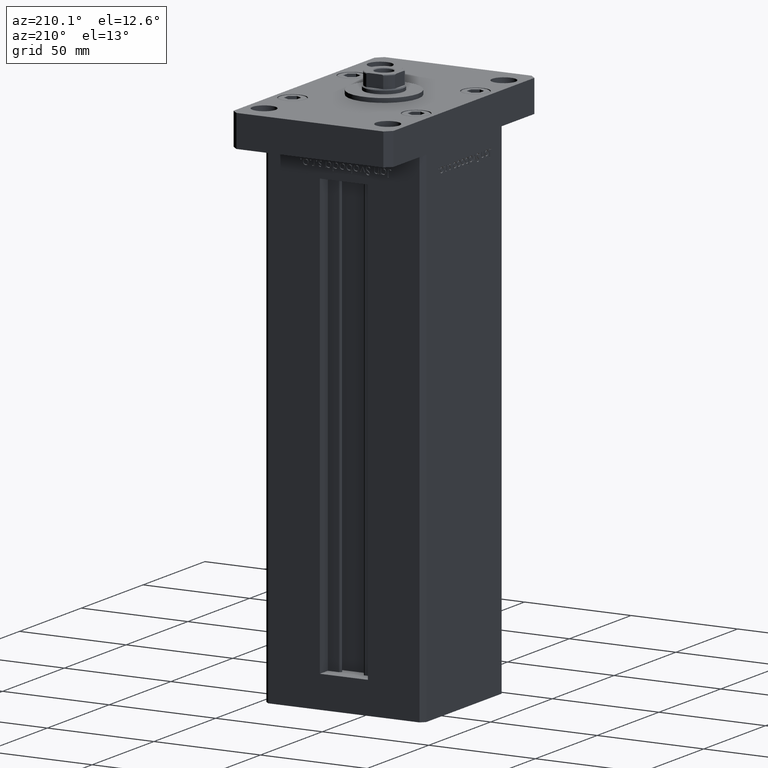
[diagram: clean part render]
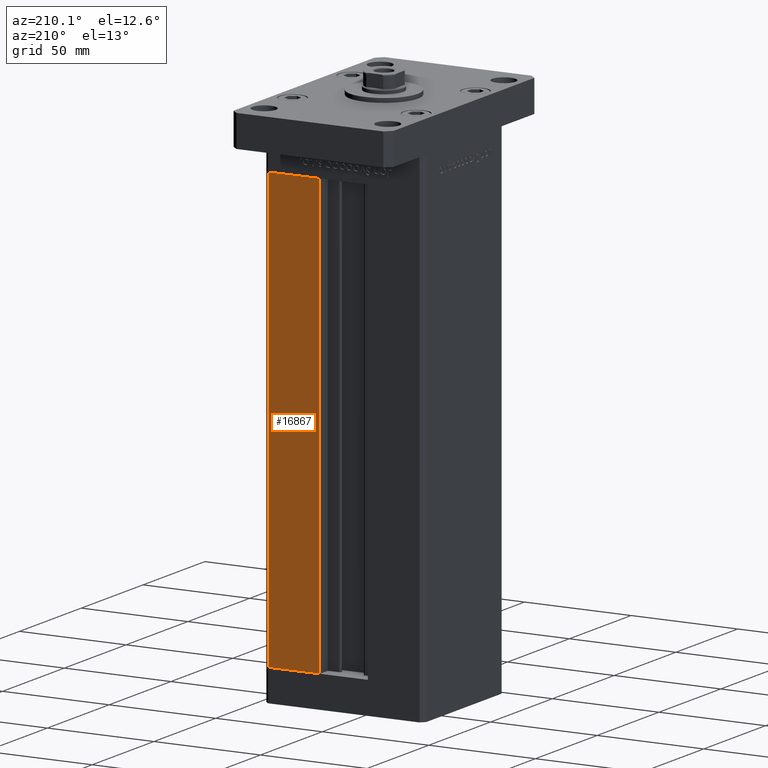
[diagram: same view with one face highlighted and labeled with its STEP entity id]
A machine part, auxiliary view. The second image highlights one B-rep face of the part: STEP entity #16867.
In plain terms, the highlighted planar face has unit normal (0, -1, 0).
Its self-contained STEP definition (entity closure, byte-faithful):
#599 = DIRECTION ( 'NONE',  ( -0.000000000000000000, -0.000000000000000000, 1.000000000000000000 ) ) ;
#876 = CARTESIAN_POINT ( 'NONE',  ( 11.25000000000000178, 32.49999999999999289, 0.000000000000000000 ) ) ;
#897 = CARTESIAN_POINT ( 'NONE',  ( -11.25000000000000178, 32.49999999999999289, 0.000000000000000000 ) ) ;
#2202 = FACE_OUTER_BOUND ( 'NONE', #35843, .T. ) ;
#4657 = VECTOR ( 'NONE', #18025, 1000.000000000000000 ) ;
#4957 = LINE ( 'NONE', #897, #7397 ) ;
#5302 = LINE ( 'NONE', #34834, #4657 ) ;
#6559 = CARTESIAN_POINT ( 'NONE',  ( 35.50000000000000000, 32.49999999999999289, 0.000000000000000000 ) ) ;
#7397 = VECTOR ( 'NONE', #45620, 1000.000000000000000 ) ;
#8542 = VERTEX_POINT ( 'NONE', #14366 ) ;
#9157 = ORIENTED_EDGE ( 'NONE', *, *, #53425, .T. ) ;
#10493 = AXIS2_PLACEMENT_3D ( 'NONE', #22019, #38553, #18202 ) ;
#14366 = CARTESIAN_POINT ( 'NONE',  ( 11.25000000000000178, 32.49999999999999289, 0.000000000000000000 ) ) ;
#15699 = VECTOR ( 'NONE', #599, 1000.000000000000000 ) ;
#16695 = EDGE_CURVE ( 'NONE', #8542, #35690, #33408, .T. ) ;
#16867 = ADVANCED_FACE ( 'NONE', ( #2202 ), #51534, .F. ) ;
#18025 = DIRECTION ( 'NONE',  ( -0.000000000000000000, -0.000000000000000000, -1.000000000000000000 ) ) ;
#18202 = DIRECTION ( 'NONE',  ( 0.000000000000000000, -0.000000000000000000, -1.000000000000000000 ) ) ;
#22019 = CARTESIAN_POINT ( 'NONE',  ( -11.25000000000000178, 32.49999999999999289, 206.0000000000000000 ) ) ;
#23946 = ORIENTED_EDGE ( 'NONE', *, *, #37108, .T. ) ;
#27340 = ORIENTED_EDGE ( 'NONE', *, *, #16695, .T. ) ;
#28010 = VERTEX_POINT ( 'NONE', #6559 ) ;
#31950 = VERTEX_POINT ( 'NONE', #49078 ) ;
#33408 = LINE ( 'NONE', #876, #15699 ) ;
#34834 = CARTESIAN_POINT ( 'NONE',  ( 35.50000000000000000, 32.49999999999999289, 206.0000000000000000 ) ) ;
#35690 = VERTEX_POINT ( 'NONE', #42736 ) ;
#35843 = EDGE_LOOP ( 'NONE', ( #9157, #27340, #23946, #44034 ) ) ;
#36181 = LINE ( 'NONE', #44572, #45627 ) ;
#37108 = EDGE_CURVE ( 'NONE', #35690, #31950, #36181, .T. ) ;
#38553 = DIRECTION ( 'NONE',  ( 0.000000000000000000, -1.000000000000000000, 0.000000000000000000 ) ) ;
#39439 = DIRECTION ( 'NONE',  ( 1.000000000000000000, 0.000000000000000000, 0.000000000000000000 ) ) ;
#42736 = CARTESIAN_POINT ( 'NONE',  ( 11.24999999999999467, 32.49999999999999289, 206.0000000000000000 ) ) ;
#44034 = ORIENTED_EDGE ( 'NONE', *, *, #48057, .T. ) ;
#44572 = CARTESIAN_POINT ( 'NONE',  ( -11.25000000000000178, 32.49999999999999289, 206.0000000000000000 ) ) ;
#45620 = DIRECTION ( 'NONE',  ( -1.000000000000000000, 0.000000000000000000, 0.000000000000000000 ) ) ;
#45627 = VECTOR ( 'NONE', #39439, 1000.000000000000000 ) ;
#48057 = EDGE_CURVE ( 'NONE', #31950, #28010, #5302, .T. ) ;
#49078 = CARTESIAN_POINT ( 'NONE',  ( 35.50000000000000000, 32.49999999999999289, 206.0000000000000000 ) ) ;
#51534 = PLANE ( 'NONE',  #10493 ) ;
#53425 = EDGE_CURVE ( 'NONE', #28010, #8542, #4957, .T. ) ;